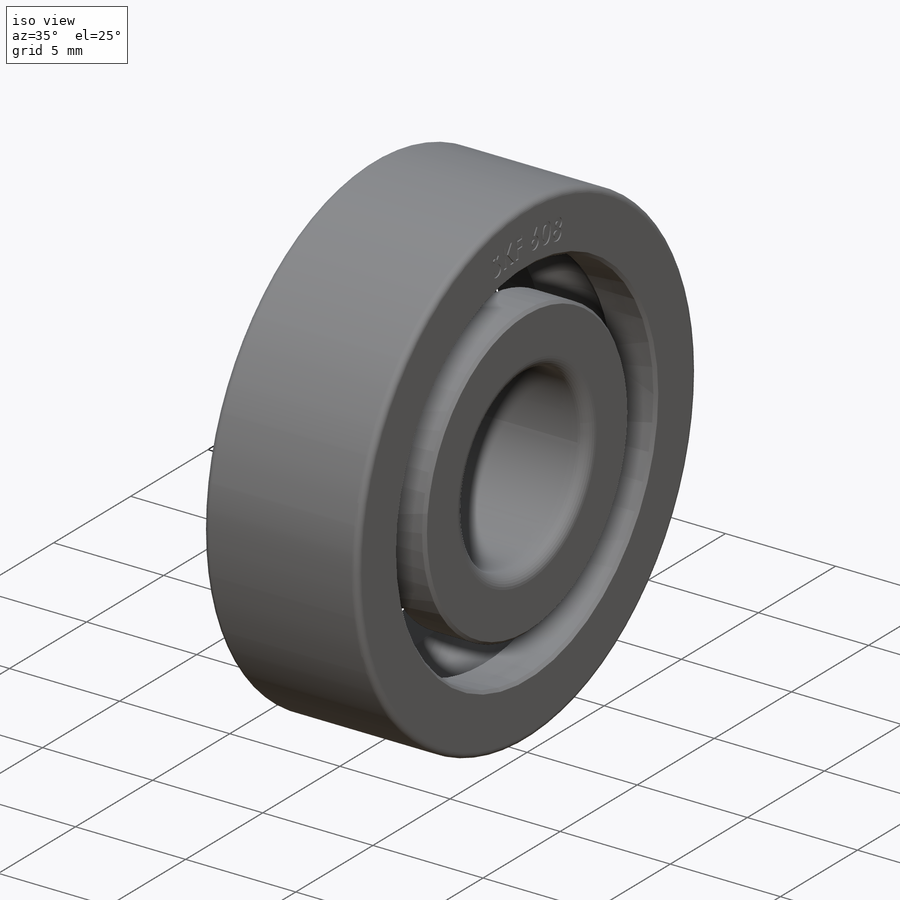
[diagram: iso view]
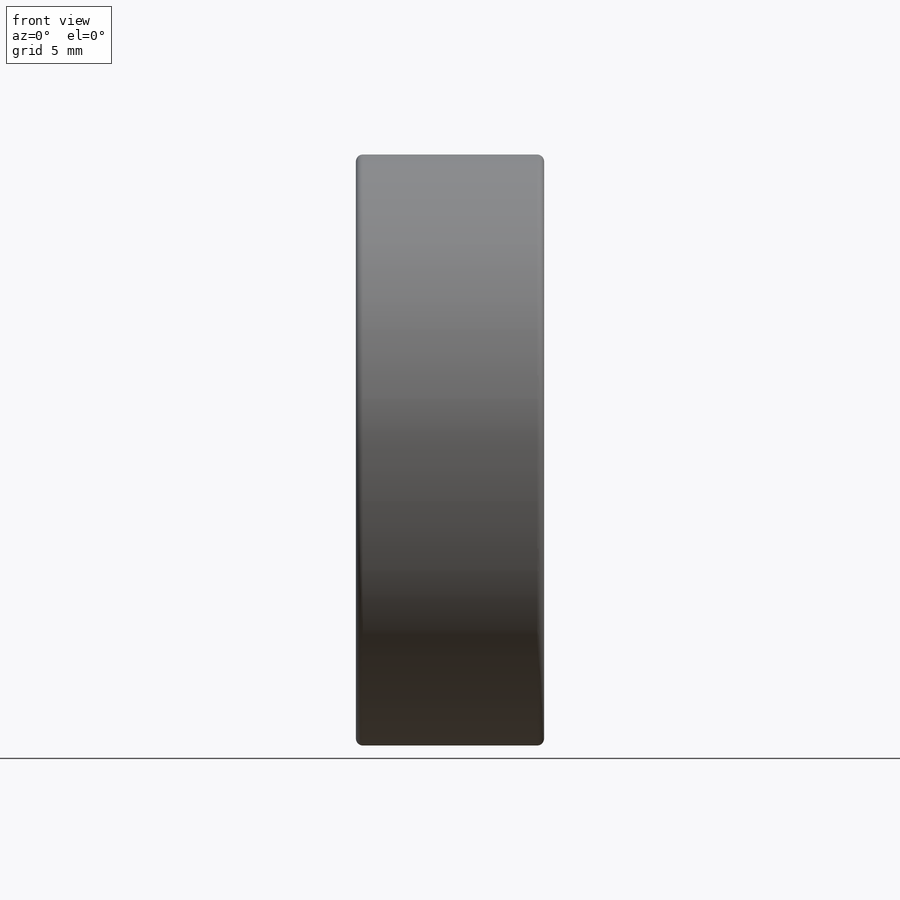
[diagram: front view]
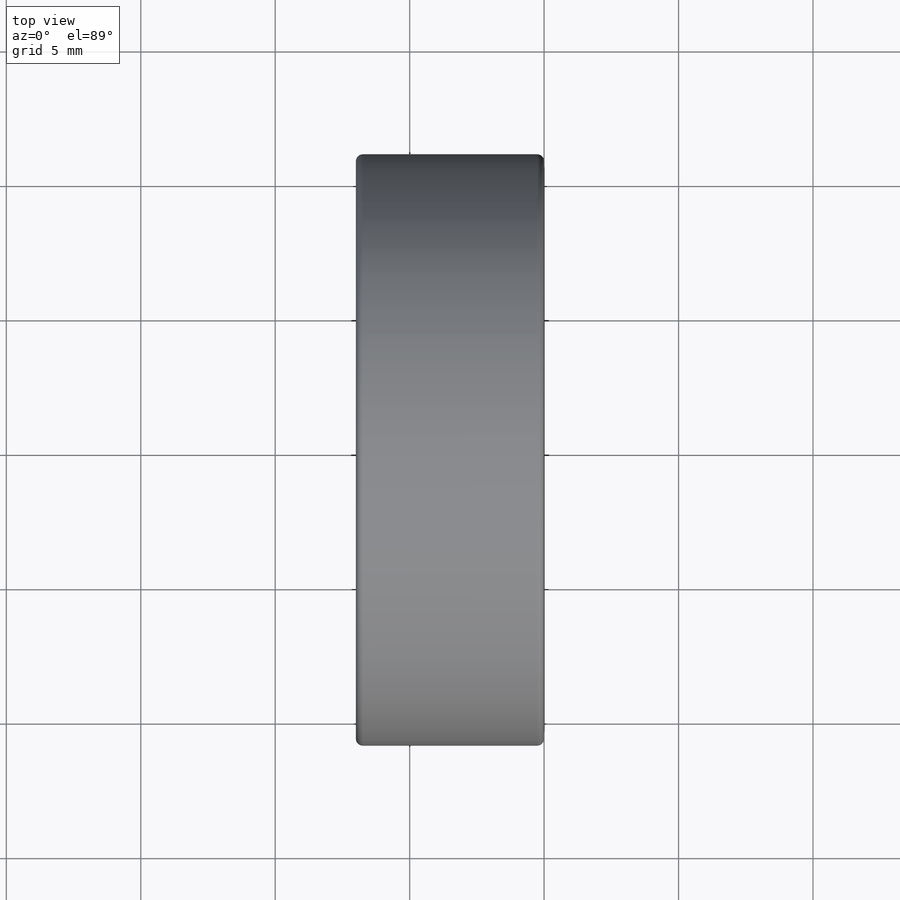
[diagram: top view]
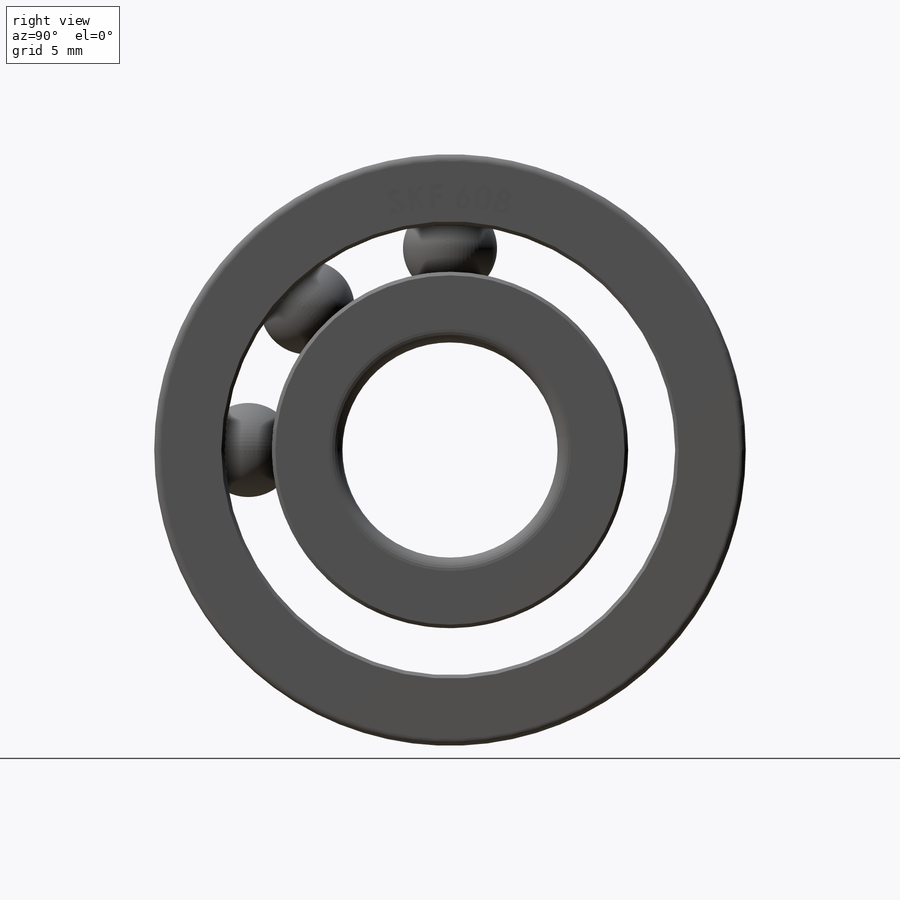
[diagram: right view]
SOLIDWORKS PART (.sldprt)
format: sldprt  version: not decoded by parser v0  size: 995,840 bytes
history: native  units: mm
features: sketch x5, revolve x2, plane x2, extrude x2, material x1, pattern_circular x1 (+12 scaffold rows collapsed)
feature tree (25):
  scaffold x12  (default folders/planes/origin — collapsed)
  material  "Material <not specified>"
  sketch  "Sketch1"  dims[D5=3.5mm D10=0.26mm D11=0.5mm D1=4.0mm D2=11.0mm D3=7.0mm D4=7.0mm D6=7.5mm D7=3.5mm D8=2.625mm D9=2.625mm]
  revolve  "Revolve1"  Angle=360deg
  sketch  "Sketch2"  dims[D3=3.5mm D1=7.5mm D2=3.5mm]
  revolve  "Revolve2"  Angle=360deg
  pattern_circular  "CirPattern1"  Count=8 Angle=360deg
  sketch  "Sketch5"  dims[c1.D1=18.0mm c1.D2=9.0mm c2.D2=30.0deg c2.D1=0.05mm]
  plane  "Plane1"  Offset=0.5mm
  sketch  "Sketch3"  dims[D1=13.25mm D2=16.75mm]
  extrude  "Seal 1"  Depth=0.2mm
  plane  "Plane2"  Offset=0.5mm
  sketch  "Sketch4"  dims[D1=16.75mm D2=13.25mm]
  extrude  "Seal 2"  Depth=0.2mm
decode coverage: 10 of 10 modeling features carry decoded parameters
note: suppression state not decoded; provenance and decode notes live in map.json
